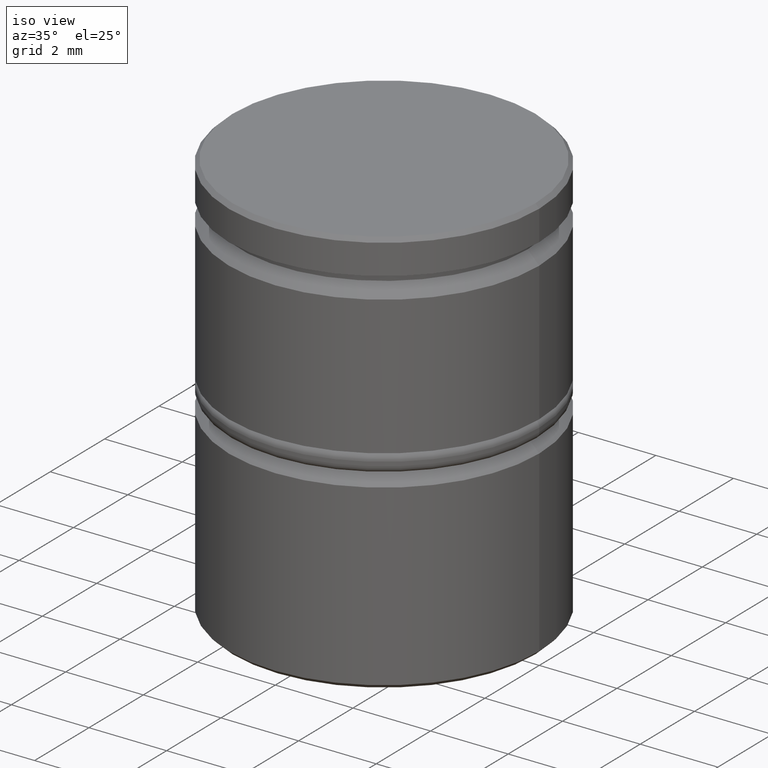
[diagram: clean part render]
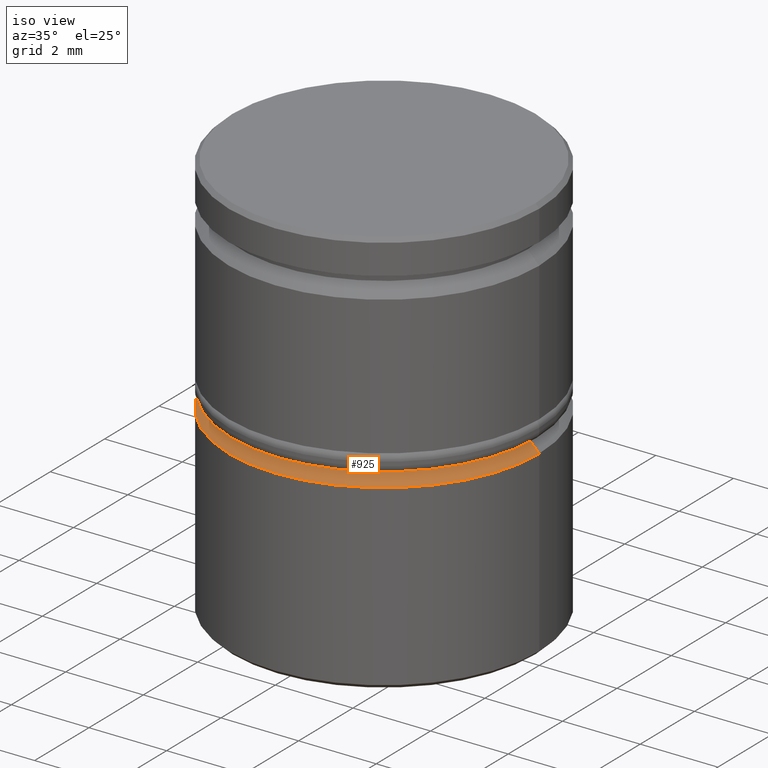
[diagram: same view with one face highlighted and labeled with its STEP entity id]
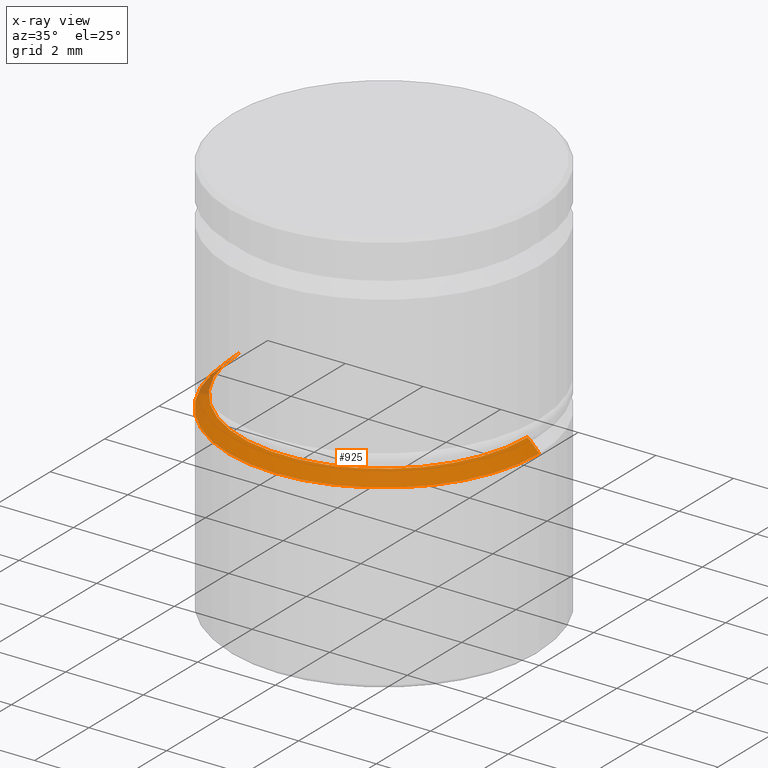
[diagram: x-ray of the same camera — body ghosted, the highlighted face saturated]
A machine part, iso view. The second image highlights one B-rep face of the part: STEP entity #925.
The next image is the same camera in x-ray: the body ghosted, the highlighted face saturated — about 2% of this face is hidden behind the body in this view.
In plain terms, the highlighted conical surface has half-angle 45 deg.
Its self-contained STEP definition (entity closure, byte-faithful):
#21 = ORIENTED_EDGE ( 'NONE', *, *, #172, .F. ) ;
#77 = EDGE_LOOP ( 'NONE', ( #21, #669, #423, #511 ) ) ;
#80 = VERTEX_POINT ( 'NONE', #934 ) ;
#82 = VERTEX_POINT ( 'NONE', #748 ) ;
#156 = CIRCLE ( 'NONE', #177, 3.700000000000000178 ) ;
#165 = DIRECTION ( 'NONE',  ( -1.000000000000000000, 0.000000000000000000, 0.000000000000000000 ) ) ;
#172 = EDGE_CURVE ( 'NONE', #80, #992, #721, .T. ) ;
#173 = FACE_OUTER_BOUND ( 'NONE', #77, .T. ) ;
#177 = AXIS2_PLACEMENT_3D ( 'NONE', #666, #939, #1122 ) ;
#234 = VECTOR ( 'NONE', #341, 1000.000000000000000 ) ;
#273 = DIRECTION ( 'NONE',  ( 1.000000000000000000, 0.000000000000000000, 0.000000000000000000 ) ) ;
#296 = CONICAL_SURFACE ( 'NONE', #808, 3.700000000000000178, 0.7853981633974425058 ) ;
#341 = DIRECTION ( 'NONE',  ( -0.7071067811865434649, 0.000000000000000000, -0.7071067811865516806 ) ) ;
#369 = CARTESIAN_POINT ( 'NONE',  ( 4.000000000000000000, 0.000000000000000000, -5.800000000000003375 ) ) ;
#373 = EDGE_CURVE ( 'NONE', #992, #82, #473, .T. ) ;
#423 = ORIENTED_EDGE ( 'NONE', *, *, #924, .T. ) ;
#446 = DIRECTION ( 'NONE',  ( 0.000000000000000000, 0.000000000000000000, -1.000000000000000000 ) ) ;
#461 = LINE ( 'NONE', #1161, #234 ) ;
#473 = CIRCLE ( 'NONE', #524, 4.000000000000000000 ) ;
#511 = ORIENTED_EDGE ( 'NONE', *, *, #373, .F. ) ;
#524 = AXIS2_PLACEMENT_3D ( 'NONE', #1089, #446, #273 ) ;
#547 = CARTESIAN_POINT ( 'NONE',  ( 3.700000000000000178, 4.531193156845206201E-16, -5.500000000000000000 ) ) ;
#666 = CARTESIAN_POINT ( 'NONE',  ( 0.000000000000000000, 0.000000000000000000, -5.500000000000000000 ) ) ;
#669 = ORIENTED_EDGE ( 'NONE', *, *, #1110, .F. ) ;
#721 = LINE ( 'NONE', #547, #905 ) ;
#748 = CARTESIAN_POINT ( 'NONE',  ( -4.000000000000000000, 4.898587196589412829E-16, -5.800000000000003375 ) ) ;
#808 = AXIS2_PLACEMENT_3D ( 'NONE', #998, #818, #165 ) ;
#818 = DIRECTION ( 'NONE',  ( 0.000000000000000000, 0.000000000000000000, -1.000000000000000000 ) ) ;
#905 = VECTOR ( 'NONE', #909, 1000.000000000000000 ) ;
#909 = DIRECTION ( 'NONE',  ( 0.7071067811865434649, 8.659560562354883554E-17, -0.7071067811865516806 ) ) ;
#924 = EDGE_CURVE ( 'NONE', #1176, #82, #461, .T. ) ;
#925 = ADVANCED_FACE ( 'NONE', ( #173 ), #296, .T. ) ;
#934 = CARTESIAN_POINT ( 'NONE',  ( 3.700000000000000178, 0.000000000000000000, -5.500000000000000000 ) ) ;
#939 = DIRECTION ( 'NONE',  ( -0.000000000000000000, -0.000000000000000000, 1.000000000000000000 ) ) ;
#946 = CARTESIAN_POINT ( 'NONE',  ( -3.700000000000000178, 4.531193156845206201E-16, -5.500000000000000000 ) ) ;
#992 = VERTEX_POINT ( 'NONE', #369 ) ;
#998 = CARTESIAN_POINT ( 'NONE',  ( 0.000000000000000000, 0.000000000000000000, -5.500000000000000000 ) ) ;
#1089 = CARTESIAN_POINT ( 'NONE',  ( 0.000000000000000000, 0.000000000000000000, -5.800000000000003375 ) ) ;
#1110 = EDGE_CURVE ( 'NONE', #1176, #80, #156, .T. ) ;
#1122 = DIRECTION ( 'NONE',  ( 1.000000000000000000, 0.000000000000000000, 0.000000000000000000 ) ) ;
#1161 = CARTESIAN_POINT ( 'NONE',  ( -3.700000000000000178, 0.000000000000000000, -5.500000000000000000 ) ) ;
#1176 = VERTEX_POINT ( 'NONE', #946 ) ;